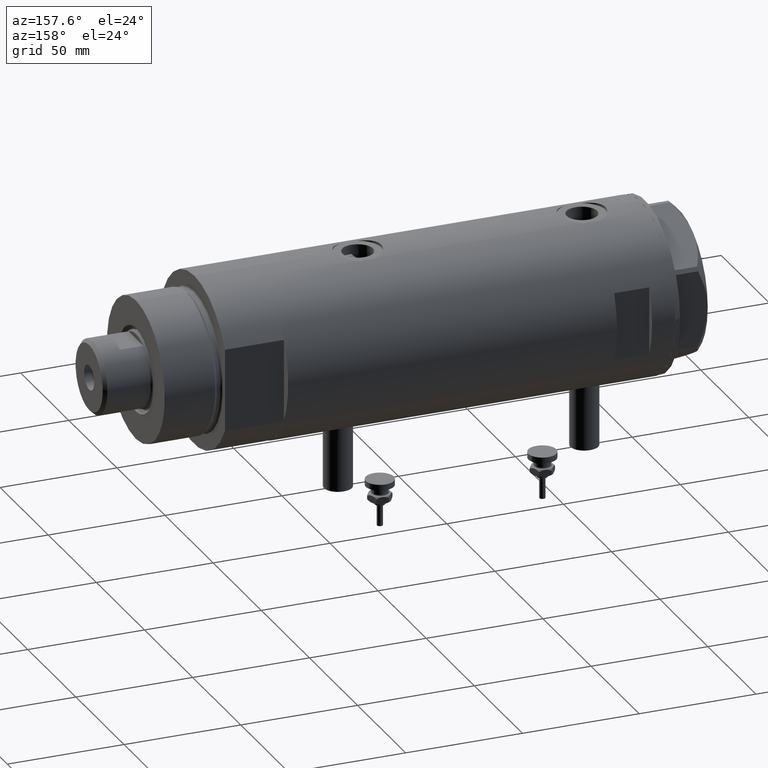
[diagram: clean part render]
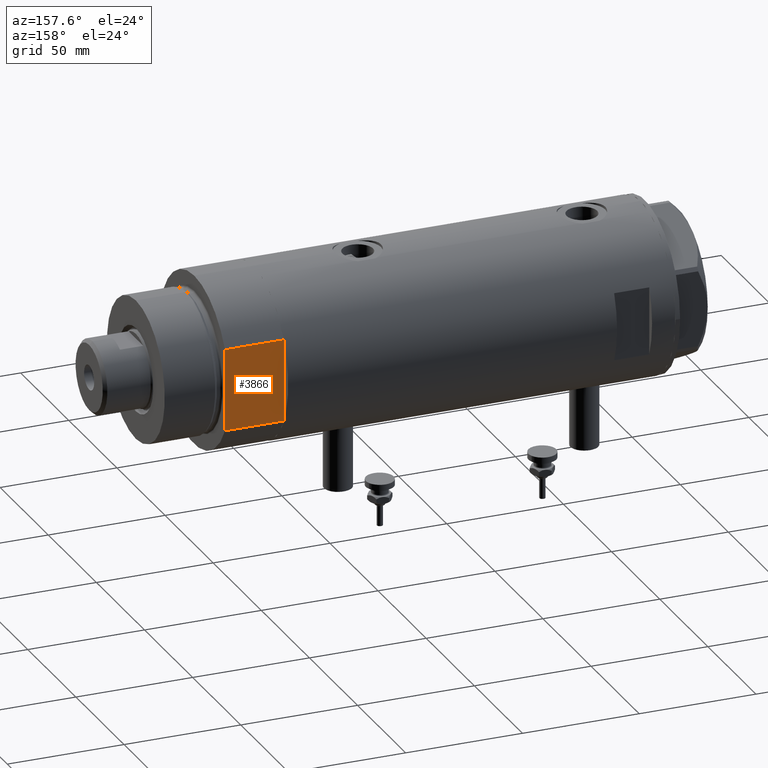
[diagram: same view with one face highlighted and labeled with its STEP entity id]
A machine part, auxiliary view. The second image highlights one B-rep face of the part: STEP entity #3866.
In plain terms, the highlighted planar face has unit normal (0, -1, -0).
Its self-contained STEP definition (entity closure, byte-faithful):
#69 = VECTOR ( 'NONE', #5182, 1000.000000000000000 ) ;
#443 = VERTEX_POINT ( 'NONE', #3669 ) ;
#506 = CARTESIAN_POINT ( 'NONE',  ( 17.55704986607943496, 32.00000000000000000, 0.000000000000000000 ) ) ;
#612 = AXIS2_PLACEMENT_3D ( 'NONE', #5607, #5544, #4295 ) ;
#686 = ORIENTED_EDGE ( 'NONE', *, *, #1702, .T. ) ;
#1136 = LINE ( 'NONE', #2882, #1610 ) ;
#1250 = VERTEX_POINT ( 'NONE', #5185 ) ;
#1264 = CARTESIAN_POINT ( 'NONE',  ( -17.55704986607943496, 32.00000000000000000, 25.19999999999999929 ) ) ;
#1296 = EDGE_CURVE ( 'NONE', #443, #3074, #1136, .T. ) ;
#1361 = EDGE_CURVE ( 'NONE', #443, #3535, #5275, .T. ) ;
#1610 = VECTOR ( 'NONE', #3768, 1000.000000000000000 ) ;
#1702 = EDGE_CURVE ( 'NONE', #3535, #1250, #2857, .T. ) ;
#1916 = CARTESIAN_POINT ( 'NONE',  ( 17.55704986607943141, 32.00000000000000000, 0.000000000000000000 ) ) ;
#1937 = PLANE ( 'NONE',  #612 ) ;
#2221 = CARTESIAN_POINT ( 'NONE',  ( 0.000000000000000000, 32.00000000000000000, 0.000000000000000000 ) ) ;
#2279 = EDGE_LOOP ( 'NONE', ( #686, #3845, #5019, #5631, #2706 ) ) ;
#2448 = LINE ( 'NONE', #3878, #4655 ) ;
#2706 = ORIENTED_EDGE ( 'NONE', *, *, #1361, .T. ) ;
#2857 = LINE ( 'NONE', #4694, #69 ) ;
#2882 = CARTESIAN_POINT ( 'NONE',  ( -17.55704986607943141, 32.00000000000000000, 0.000000000000000000 ) ) ;
#3074 = VERTEX_POINT ( 'NONE', #2221 ) ;
#3254 = FACE_OUTER_BOUND ( 'NONE', #2279, .T. ) ;
#3377 = LINE ( 'NONE', #1916, #5802 ) ;
#3405 = EDGE_CURVE ( 'NONE', #4929, #1250, #3377, .T. ) ;
#3535 = VERTEX_POINT ( 'NONE', #1264 ) ;
#3669 = CARTESIAN_POINT ( 'NONE',  ( -17.55704986607943141, 32.00000000000000000, 0.000000000000000000 ) ) ;
#3768 = DIRECTION ( 'NONE',  ( 1.000000000000000000, 0.000000000000000000, 0.000000000000000000 ) ) ;
#3845 = ORIENTED_EDGE ( 'NONE', *, *, #3405, .F. ) ;
#3866 = ADVANCED_FACE ( 'NONE', ( #3254 ), #1937, .F. ) ;
#3878 = CARTESIAN_POINT ( 'NONE',  ( -17.55704986607943141, 32.00000000000000000, 0.000000000000000000 ) ) ;
#4295 = DIRECTION ( 'NONE',  ( 0.000000000000000000, -0.000000000000000000, -1.000000000000000000 ) ) ;
#4331 = CARTESIAN_POINT ( 'NONE',  ( -17.55704986607943141, 32.00000000000000000, 0.000000000000000000 ) ) ;
#4655 = VECTOR ( 'NONE', #4827, 1000.000000000000000 ) ;
#4694 = CARTESIAN_POINT ( 'NONE',  ( -17.55704986607943141, 32.00000000000000000, 25.19999999999999929 ) ) ;
#4790 = DIRECTION ( 'NONE',  ( -0.000000000000000000, -0.000000000000000000, 1.000000000000000000 ) ) ;
#4827 = DIRECTION ( 'NONE',  ( 1.000000000000000000, 0.000000000000000000, 0.000000000000000000 ) ) ;
#4850 = DIRECTION ( 'NONE',  ( -0.000000000000000000, -0.000000000000000000, 1.000000000000000000 ) ) ;
#4862 = VECTOR ( 'NONE', #4850, 1000.000000000000000 ) ;
#4929 = VERTEX_POINT ( 'NONE', #506 ) ;
#4999 = EDGE_CURVE ( 'NONE', #3074, #4929, #2448, .T. ) ;
#5019 = ORIENTED_EDGE ( 'NONE', *, *, #4999, .F. ) ;
#5182 = DIRECTION ( 'NONE',  ( 1.000000000000000000, 0.000000000000000000, 0.000000000000000000 ) ) ;
#5185 = CARTESIAN_POINT ( 'NONE',  ( 17.55704986607943496, 32.00000000000000000, 25.19999999999999929 ) ) ;
#5275 = LINE ( 'NONE', #4331, #4862 ) ;
#5544 = DIRECTION ( 'NONE',  ( 0.000000000000000000, -1.000000000000000000, 0.000000000000000000 ) ) ;
#5607 = CARTESIAN_POINT ( 'NONE',  ( -17.55704986607943141, 32.00000000000000000, 0.000000000000000000 ) ) ;
#5631 = ORIENTED_EDGE ( 'NONE', *, *, #1296, .F. ) ;
#5802 = VECTOR ( 'NONE', #4790, 1000.000000000000000 ) ;